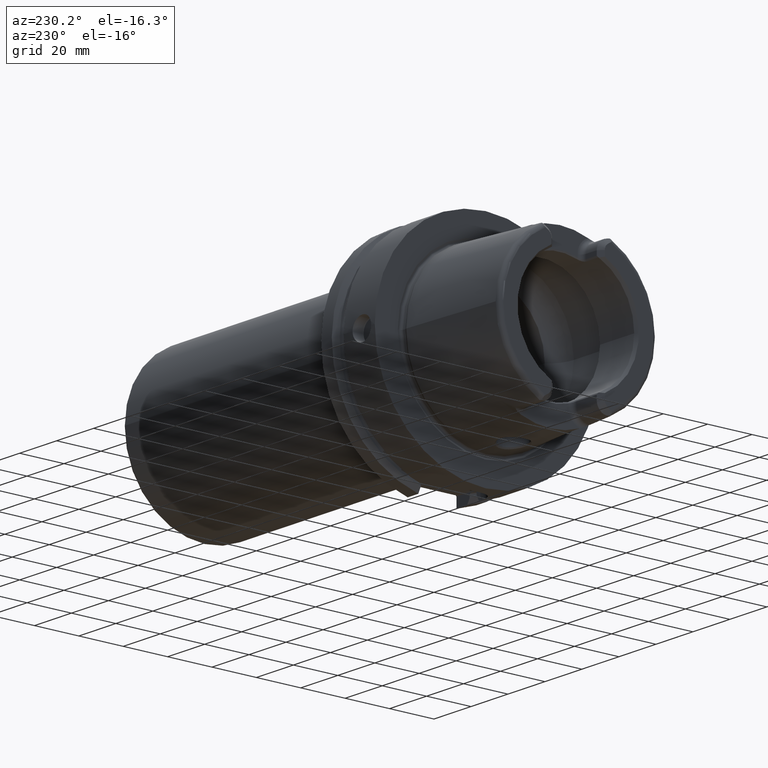
[diagram: clean part render]
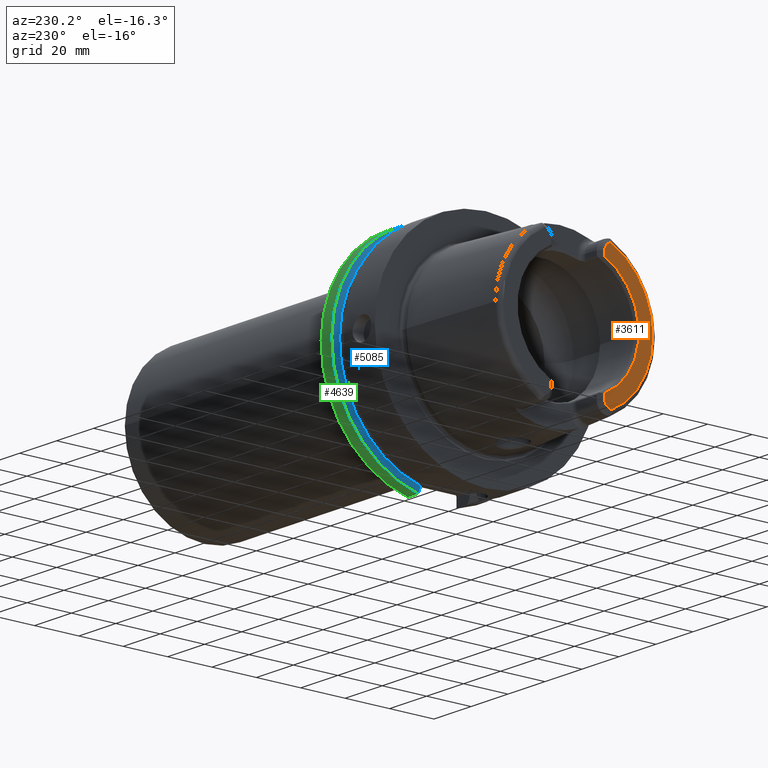
[diagram: same view with three faces highlighted in distinct colors, each labeled with its STEP entity id]
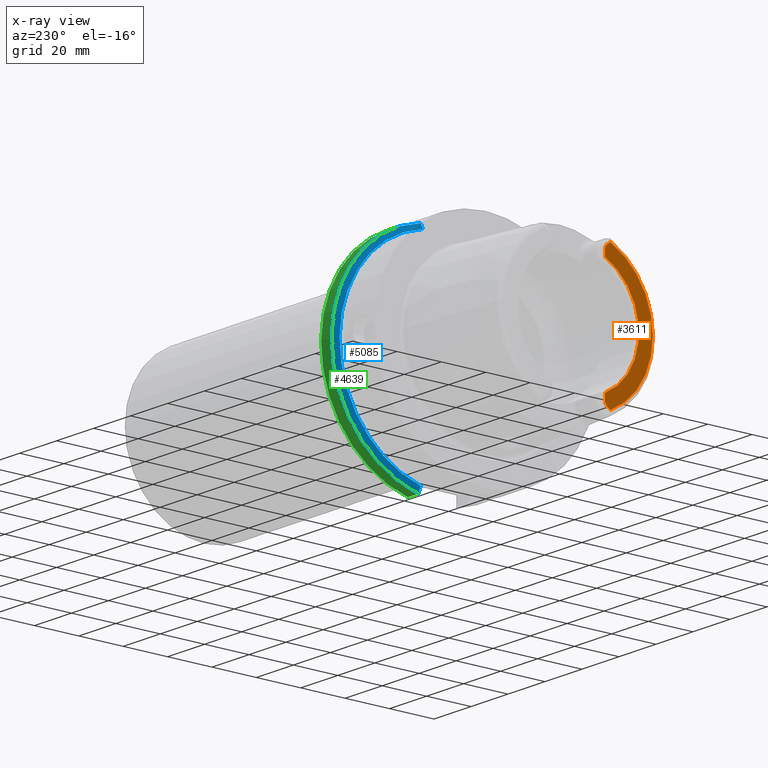
[diagram: x-ray of the same camera — body ghosted, the three highlighted faces saturated]
A machine part, auxiliary view with three faces highlighted in distinct colors.
The next image is the same camera in x-ray (body ghosted, the three faces saturated) — at least one of them is partly hidden behind the body in this view.
Their STEP definitions:

[orange] entity #3611 — the highlighted planar face has unit normal (1, 0, 0).
#126=DIRECTION('',(0.E0,0.E0,-1.E0));
#127=VECTOR('',#126,2.370180025047E0);
#128=CARTESIAN_POINT('',(-5.E1,-1.201E1,-2.458981997495E1));
#129=LINE('',#128,#127);
#130=DIRECTION('',(0.E0,0.E0,1.E0));
#131=VECTOR('',#130,2.370180025047E0);
#132=CARTESIAN_POINT('',(-5.E1,-1.201E1,2.458981997495E1));
#133=LINE('',#132,#131);
#134=CARTESIAN_POINT('',(-5.E1,-1.501E1,2.696E1));
#135=DIRECTION('',(1.E0,0.E0,0.E0));
#136=DIRECTION('',(0.E0,1.E0,-1.657933050107E-14));
#137=AXIS2_PLACEMENT_3D('',#134,#135,#136);
#139=DIRECTION('',(0.E0,8.533905854017E-1,-5.212720103245E-1));
#140=VECTOR('',#139,1.392150953463E0);
#141=CARTESIAN_POINT('',(-5.E1,-1.463423248617E1,3.024586108239E1));
#142=LINE('',#141,#140);
#143=DIRECTION('',(0.E0,8.533905854017E-1,5.212720103245E-1));
#144=VECTOR('',#143,1.392150953463E0);
#145=CARTESIAN_POINT('',(-5.E1,-1.463423248617E1,-3.024586108239E1));
#146=LINE('',#145,#144);
#147=CARTESIAN_POINT('',(-5.E1,-1.501E1,-2.696E1));
#148=DIRECTION('',(-1.E0,0.E0,0.E0));
#149=DIRECTION('',(0.E0,1.E0,0.E0));
#150=AXIS2_PLACEMENT_3D('',#147,#148,#149);
#197=CARTESIAN_POINT('',(-5.E1,0.E0,0.E0));
#198=DIRECTION('',(1.E0,0.E0,0.E0));
#199=DIRECTION('',(0.E0,-4.388653384185E-1,8.985528447091E-1));
#200=AXIS2_PLACEMENT_3D('',#197,#198,#199);
#359=CARTESIAN_POINT('',(-5.E1,0.E0,0.E0));
#360=DIRECTION('',(-1.E0,0.E0,0.E0));
#361=DIRECTION('',(0.E0,-4.355401503799E-1,-9.001693048572E-1));
#362=AXIS2_PLACEMENT_3D('',#359,#360,#361);
#3128=CARTESIAN_POINT('',(-5.E1,-1.201E1,2.458981997495E1));
#3129=CARTESIAN_POINT('',(-5.E1,-1.201E1,2.696E1));
#3130=VERTEX_POINT('',#3128);
#3131=VERTEX_POINT('',#3129);
#3132=CARTESIAN_POINT('',(-5.E1,-1.344618396903E1,2.952017175621E1));
#3133=VERTEX_POINT('',#3132);
#3134=CARTESIAN_POINT('',(-5.E1,-1.463423248617E1,3.024586108239E1));
#3135=VERTEX_POINT('',#3134);
#3221=CARTESIAN_POINT('',(-5.E1,-1.201E1,-2.458981997495E1));
#3222=CARTESIAN_POINT('',(-5.E1,-1.201E1,-2.696E1));
#3223=VERTEX_POINT('',#3221);
#3224=VERTEX_POINT('',#3222);
#3225=CARTESIAN_POINT('',(-5.E1,-1.344618396903E1,-2.952017175621E1));
#3226=VERTEX_POINT('',#3225);
#3227=CARTESIAN_POINT('',(-5.E1,-1.463423248617E1,-3.024586108239E1));
#3228=VERTEX_POINT('',#3227);
#3589=CARTESIAN_POINT('',(-5.E1,0.E0,0.E0));
#3590=DIRECTION('',(1.E0,0.E0,0.E0));
#3591=DIRECTION('',(0.E0,-1.E0,0.E0));
#3592=AXIS2_PLACEMENT_3D('',#3589,#3590,#3591);
#3593=PLANE('',#3592);
#3595=ORIENTED_EDGE('',*,*,#3594,.F.);
#3597=ORIENTED_EDGE('',*,*,#3596,.F.);
#3599=ORIENTED_EDGE('',*,*,#3598,.T.);
#3601=ORIENTED_EDGE('',*,*,#3600,.T.);
#3602=ORIENTED_EDGE('',*,*,#3553,.F.);
#3604=ORIENTED_EDGE('',*,*,#3603,.F.);
#3606=ORIENTED_EDGE('',*,*,#3605,.T.);
#3608=ORIENTED_EDGE('',*,*,#3607,.F.);
#3609=EDGE_LOOP('',(#3595,#3597,#3599,#3601,#3602,#3604,#3606,#3608));
#3610=FACE_OUTER_BOUND('',#3609,.F.);
#3611=ADVANCED_FACE('',(#3610),#3593,.F.);
#138=CIRCLE('',#137,3.E0);
#151=CIRCLE('',#150,3.E0);
#201=CIRCLE('',#200,2.736602540378E1);
#363=CIRCLE('',#362,3.360019156306E1);
#3553=EDGE_CURVE('',#3135,#3133,#142,.T.);
#3594=EDGE_CURVE('',#3223,#3224,#129,.T.);
#3596=EDGE_CURVE('',#3130,#3223,#201,.T.);
#3598=EDGE_CURVE('',#3130,#3131,#133,.T.);
#3600=EDGE_CURVE('',#3131,#3133,#138,.T.);
#3603=EDGE_CURVE('',#3228,#3135,#363,.T.);
#3605=EDGE_CURVE('',#3228,#3226,#146,.T.);
#3607=EDGE_CURVE('',#3224,#3226,#151,.T.);

[blue] entity #5085 — the highlighted conical surface has half-angle 60 deg.
#1646=CARTESIAN_POINT('',(2.324759526419E1,1.1E1,-4.877499359303E1));
#1647=CARTESIAN_POINT('',(2.309075618244E1,1.1E1,-4.849651763825E1));
#1648=CARTESIAN_POINT('',(2.277996511889E1,1.1E1,-4.794446101512E1));
#1649=CARTESIAN_POINT('',(2.232251548208E1,1.1E1,-4.713119970766E1));
#1650=CARTESIAN_POINT('',(2.202321854676E1,1.1E1,-4.659863454325E1));
#1651=CARTESIAN_POINT('',(2.1875E1,1.1E1,-4.633477721644E1));
#1653=CARTESIAN_POINT('',(2.324759526419E1,0.E0,0.E0));
#1654=DIRECTION('',(1.E0,0.E0,0.E0));
#1655=DIRECTION('',(0.E0,2.2E-1,-9.754998718606E-1));
#1656=AXIS2_PLACEMENT_3D('',#1653,#1654,#1655);
#1658=CARTESIAN_POINT('',(2.1875E1,1.E1,4.656083740331E1));
#1659=CARTESIAN_POINT('',(2.202341485415E1,1.E1,4.682376142925E1));
#1660=CARTESIAN_POINT('',(2.232297392293E1,1.E1,4.735424823675E1));
#1661=CARTESIAN_POINT('',(2.278043311037E1,1.E1,4.816377318979E1));
#1662=CARTESIAN_POINT('',(2.309095690730E1,1.E1,4.871289474479E1));
#1663=CARTESIAN_POINT('',(2.324759526419E1,1.E1,4.898979485566E1));
#1665=CARTESIAN_POINT('',(2.1875E1,0.E0,0.E0));
#1666=DIRECTION('',(-1.E0,0.E0,0.E0));
#1667=DIRECTION('',(0.E0,2.099843560504E-1,9.777047459300E-1));
#1668=AXIS2_PLACEMENT_3D('',#1665,#1666,#1667);
#3314=CARTESIAN_POINT('',(2.1875E1,1.E1,4.656083740331E1));
#3315=VERTEX_POINT('',#3314);
#3317=VERTEX_POINT('',#1663);
#3326=CARTESIAN_POINT('',(2.324759526419E1,1.1E1,-4.877499359303E1));
#3328=VERTEX_POINT('',#3326);
#3354=CARTESIAN_POINT('',(2.1875E1,1.1E1,-4.633477721644E1));
#3355=VERTEX_POINT('',#3354);
#5073=CARTESIAN_POINT('',(2.256129763210E1,0.E0,0.E0));
#5074=DIRECTION('',(1.E0,0.E0,0.E0));
#5075=DIRECTION('',(0.E0,-1.E0,0.E0));
#5076=AXIS2_PLACEMENT_3D('',#5073,#5074,#5075);
#5077=CONICAL_SURFACE('',#5076,4.881129763210E1,6.E1);
#5078=ORIENTED_EDGE('',*,*,#4704,.F.);
#5079=ORIENTED_EDGE('',*,*,#4635,.T.);
#5081=ORIENTED_EDGE('',*,*,#5080,.F.);
#5082=ORIENTED_EDGE('',*,*,#5037,.T.);
#5083=EDGE_LOOP('',(#5078,#5079,#5081,#5082));
#5084=FACE_OUTER_BOUND('',#5083,.F.);
#5085=ADVANCED_FACE('',(#5084),#5077,.T.);
#1652=B_SPLINE_CURVE_WITH_KNOTS('',3,(#1646,#1647,#1648,#1649,#1650,#1651),
.UNSPECIFIED.,.F.,.F.,(4,1,1,4),(0.E0,3.333333333333E-1,6.666666666667E-1,1.E0),
.UNSPECIFIED.);
#1657=CIRCLE('',#1656,5.E1);
#1664=B_SPLINE_CURVE_WITH_KNOTS('',3,(#1658,#1659,#1660,#1661,#1662,#1663),
.UNSPECIFIED.,.F.,.F.,(4,1,1,4),(0.E0,3.333333333333E-1,6.666666666667E-1,1.E0),
.UNSPECIFIED.);
#1669=CIRCLE('',#1668,4.762259526419E1);
#4635=EDGE_CURVE('',#3328,#3317,#1657,.T.);
#4704=EDGE_CURVE('',#3328,#3355,#1652,.T.);
#5037=EDGE_CURVE('',#3315,#3355,#1669,.T.);
#5080=EDGE_CURVE('',#3315,#3317,#1664,.T.);

[green] entity #4639 — the highlighted cylindrical surface (partial cylindrical patch) has radius 50 mm, axis along (1, 0, 0).
#1110=DIRECTION('',(1.E0,0.E0,0.E0));
#1111=VECTOR('',#1110,5.752404735808E0);
#1112=CARTESIAN_POINT('',(2.324759526419E1,1.1E1,-4.877499359303E1));
#1113=LINE('',#1112,#1111);
#1114=CARTESIAN_POINT('',(2.9E1,0.E0,0.E0));
#1115=DIRECTION('',(1.E0,0.E0,0.E0));
#1116=DIRECTION('',(0.E0,2.2E-1,-9.754998718606E-1));
#1117=AXIS2_PLACEMENT_3D('',#1114,#1115,#1116);
#1119=DIRECTION('',(1.E0,0.E0,0.E0));
#1120=VECTOR('',#1119,5.752404735808E0);
#1121=CARTESIAN_POINT('',(2.324759526419E1,1.E1,4.898979485566E1));
#1122=LINE('',#1121,#1120);
#1653=CARTESIAN_POINT('',(2.324759526419E1,0.E0,0.E0));
#1654=DIRECTION('',(1.E0,0.E0,0.E0));
#1655=DIRECTION('',(0.E0,2.2E-1,-9.754998718606E-1));
#1656=AXIS2_PLACEMENT_3D('',#1653,#1654,#1655);
#1663=CARTESIAN_POINT('',(2.324759526419E1,1.E1,4.898979485566E1));
#3317=VERTEX_POINT('',#1663);
#3326=CARTESIAN_POINT('',(2.324759526419E1,1.1E1,-4.877499359303E1));
#3327=CARTESIAN_POINT('',(2.9E1,1.1E1,-4.877499359303E1));
#3328=VERTEX_POINT('',#3326);
#3329=VERTEX_POINT('',#3327);
#3372=CARTESIAN_POINT('',(2.9E1,1.E1,4.898979485566E1));
#3373=VERTEX_POINT('',#3372);
#4625=CARTESIAN_POINT('',(-5.395E1,0.E0,0.E0));
#4626=DIRECTION('',(1.E0,0.E0,0.E0));
#4627=DIRECTION('',(0.E0,-1.E0,0.E0));
#4628=AXIS2_PLACEMENT_3D('',#4625,#4626,#4627);
#4629=CYLINDRICAL_SURFACE('',#4628,5.E1);
#4631=ORIENTED_EDGE('',*,*,#4630,.T.);
#4632=ORIENTED_EDGE('',*,*,#4574,.T.);
#4634=ORIENTED_EDGE('',*,*,#4633,.F.);
#4636=ORIENTED_EDGE('',*,*,#4635,.F.);
#4637=EDGE_LOOP('',(#4631,#4632,#4634,#4636));
#4638=FACE_OUTER_BOUND('',#4637,.F.);
#4639=ADVANCED_FACE('',(#4638),#4629,.T.);
#1118=CIRCLE('',#1117,5.E1);
#1657=CIRCLE('',#1656,5.E1);
#4574=EDGE_CURVE('',#3329,#3373,#1118,.T.);
#4630=EDGE_CURVE('',#3328,#3329,#1113,.T.);
#4633=EDGE_CURVE('',#3317,#3373,#1122,.T.);
#4635=EDGE_CURVE('',#3328,#3317,#1657,.T.);